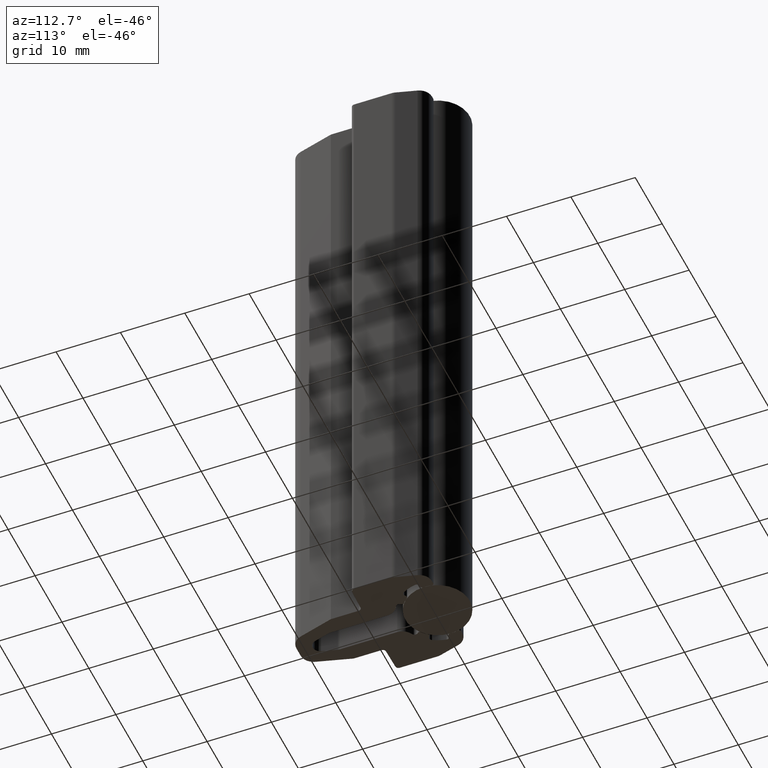
[diagram: clean part render]
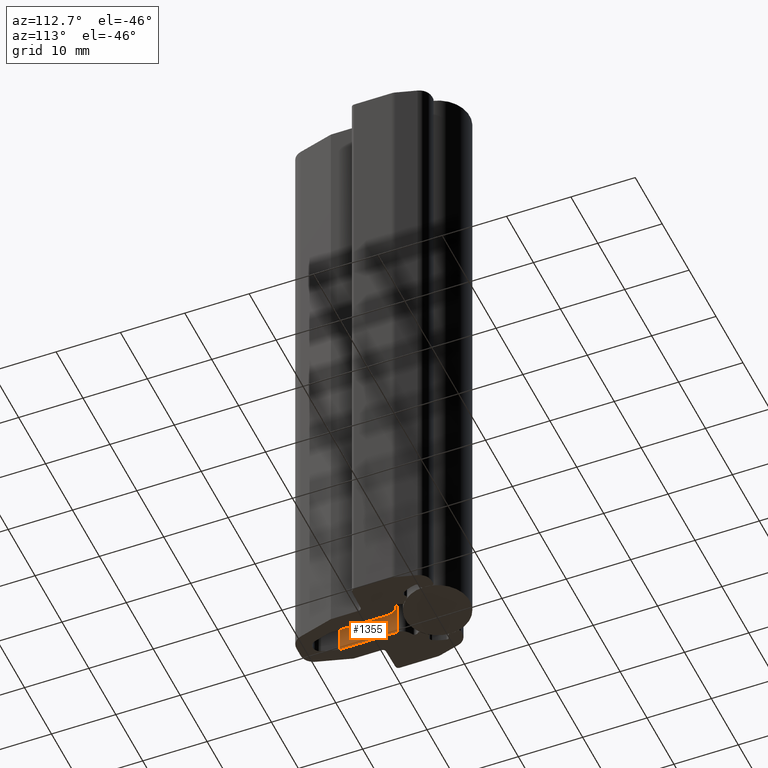
[diagram: same view with one face highlighted and labeled with its STEP entity id]
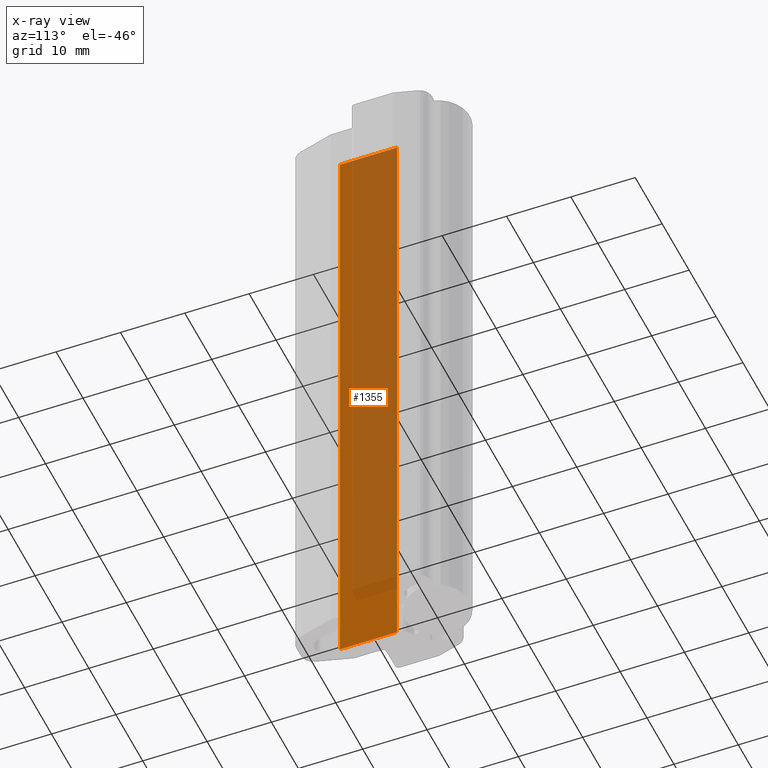
[diagram: x-ray of the same camera — body ghosted, the highlighted face saturated]
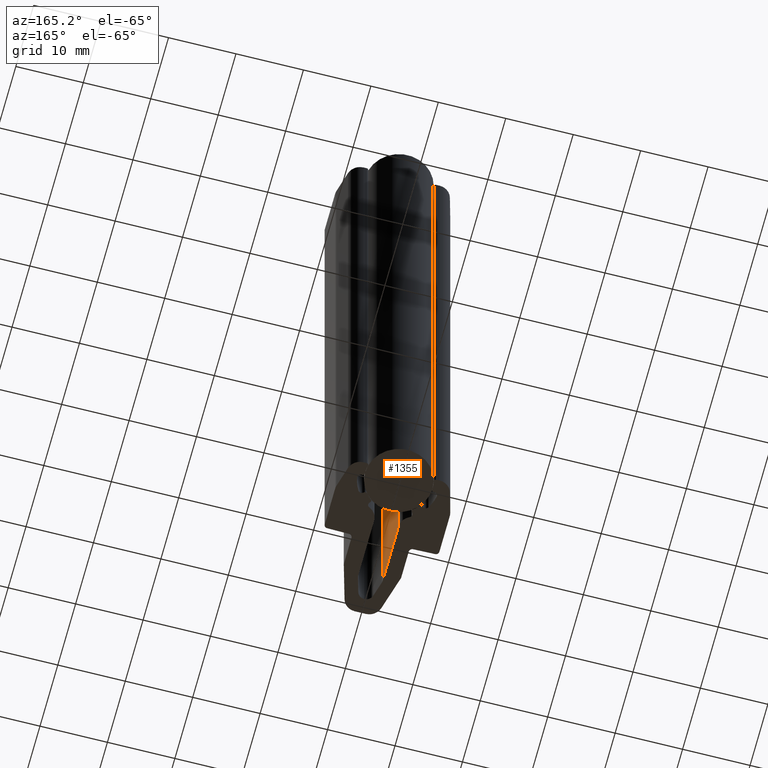
[diagram: same view with one face highlighted and labeled with its STEP entity id]
A machine part, auxiliary view. The second image highlights one B-rep face of the part: STEP entity #1355.
The next image is the same camera in x-ray: the body ghosted, the highlighted face saturated — about 72% of this face is hidden behind the body in this view.
A second angle (auxiliary view) of the same face is appended — the face is thin or edge-on in the first view.
In plain terms, the highlighted planar face has unit normal (1, 0, 0).
Its self-contained STEP definition (entity closure, byte-faithful):
#116=FACE_OUTER_BOUND('',#184,.T.);
#184=EDGE_LOOP('',(#1113,#1114,#1115,#1116));
#213=LINE('',#2073,#323);
#295=LINE('',#2314,#405);
#296=LINE('',#2317,#406);
#297=LINE('',#2318,#407);
#323=VECTOR('',#1640,10.);
#405=VECTOR('',#1918,10.);
#406=VECTOR('',#1921,10.);
#407=VECTOR('',#1922,10.);
#554=VERTEX_POINT('',#2070);
#555=VERTEX_POINT('',#2072);
#616=VERTEX_POINT('',#2312);
#617=VERTEX_POINT('',#2316);
#682=EDGE_CURVE('',#554,#555,#213,.T.);
#803=EDGE_CURVE('',#616,#554,#295,.T.);
#804=EDGE_CURVE('',#617,#616,#296,.T.);
#805=EDGE_CURVE('',#617,#555,#297,.T.);
#1113=ORIENTED_EDGE('',*,*,#803,.F.);
#1114=ORIENTED_EDGE('',*,*,#804,.F.);
#1115=ORIENTED_EDGE('',*,*,#805,.T.);
#1116=ORIENTED_EDGE('',*,*,#682,.F.);
#1220=PLANE('',#1525);
#1355=ADVANCED_FACE('',(#116),#1220,.T.);
#1525=AXIS2_PLACEMENT_3D('',#2315,#1919,#1920);
#1640=DIRECTION('',(3.73814558567148E-16,-1.,0.));
#1918=DIRECTION('',(0.,0.,-1.));
#1919=DIRECTION('center_axis',(1.,3.73814558567148E-16,0.));
#1920=DIRECTION('ref_axis',(-3.73814558567148E-16,1.,0.));
#1921=DIRECTION('',(-3.73814558567148E-16,1.,0.));
#1922=DIRECTION('',(0.,0.,-1.));
#2070=CARTESIAN_POINT('',(-1.80000000000008,-7.03988636271917,-50.));
#2072=CARTESIAN_POINT('',(-1.80000000000008,-15.9498364905101,-50.));
#2073=CARTESIAN_POINT('',(-1.80000000000008,-7.03988636271917,-50.));
#2312=CARTESIAN_POINT('',(-1.80000000000008,-7.03988636271917,50.));
#2314=CARTESIAN_POINT('',(-1.80000000000008,-7.03988636271917,0.));
#2315=CARTESIAN_POINT('Origin',(-1.80000000000008,-15.9498364905101,0.));
#2316=CARTESIAN_POINT('',(-1.80000000000008,-15.9498364905101,50.));
#2317=CARTESIAN_POINT('',(-1.80000000000008,-7.03988636271917,50.));
#2318=CARTESIAN_POINT('',(-1.80000000000008,-15.9498364905101,0.));